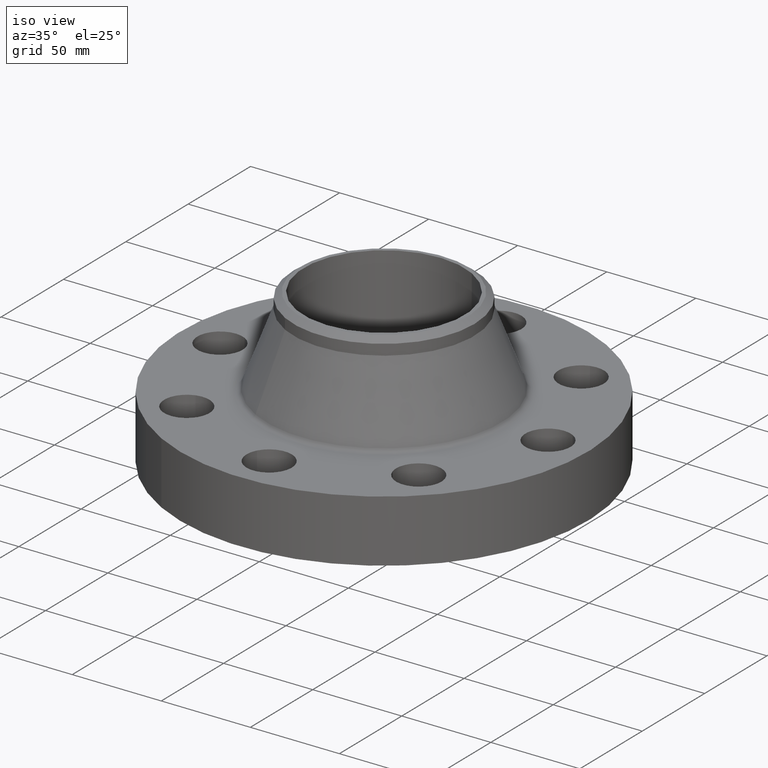
[diagram: clean part render]
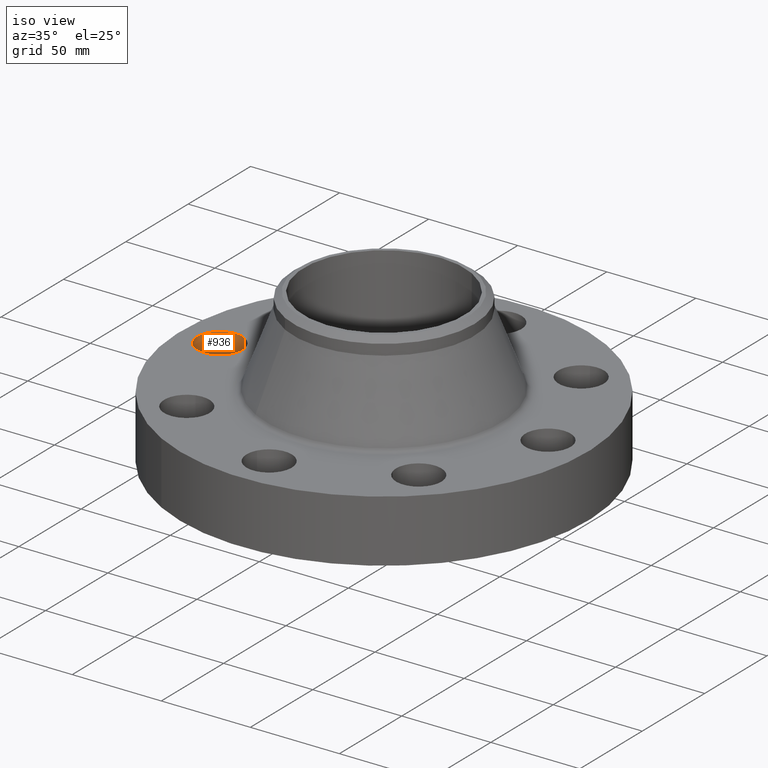
[diagram: same view with one face highlighted and labeled with its STEP entity id]
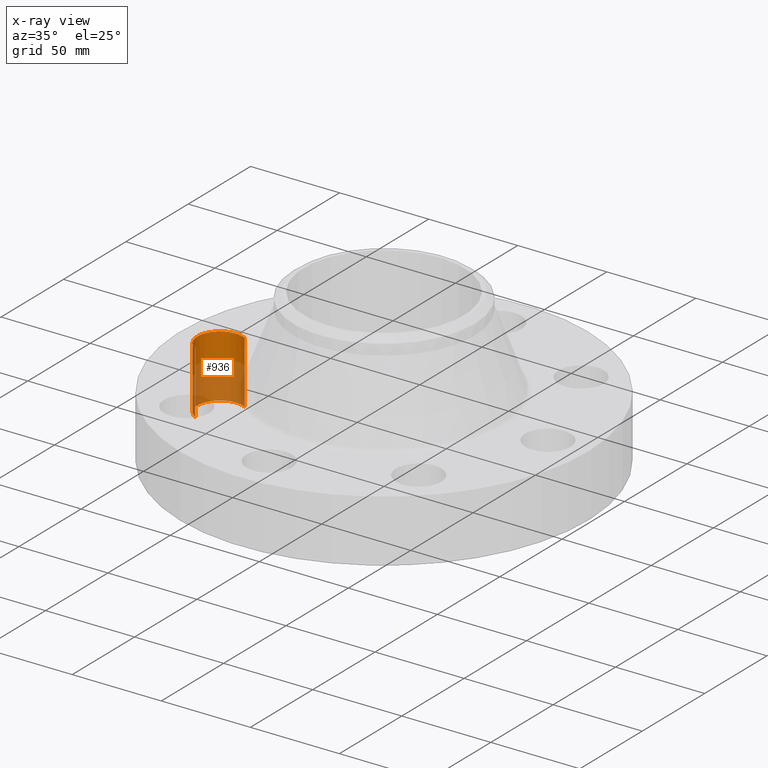
[diagram: x-ray of the same camera — body ghosted, the highlighted face saturated]
A machine part, iso view. The second image highlights one B-rep face of the part: STEP entity #936.
The next image is the same camera in x-ray: the body ghosted, the highlighted face saturated — about 59% of this face is hidden behind the body in this view.
In plain terms, the highlighted cylindrical surface (edge-blend (fillet) strip) has radius 12.7 mm, axis along (0, 0, -1).
Its self-contained STEP definition (entity closure, byte-faithful):
#626=AXIS2_PLACEMENT_3D('Circle Axis2P3D',#624,#625,$) ;
#909=AXIS2_PLACEMENT_3D('Cylinder Axis2P3D',#906,#907,#908) ;
#927=AXIS2_PLACEMENT_3D('Circle Axis2P3D',#925,#926,$) ;
#621=CARTESIAN_POINT('Vertex',(-3.38528723071,0.438791280947,0.)) ;
#624=CARTESIAN_POINT('Axis2P3D Location',(-3.62500000001,-1.1189649382E-015,0.)) ;
#628=CARTESIAN_POINT('Vertex',(-3.86471276932,-0.438791280947,0.)) ;
#906=CARTESIAN_POINT('Axis2P3D Location',(-3.62500000001,-1.22538416614E-015,1.37606299213)) ;
#911=CARTESIAN_POINT('Line Origine',(-3.86471276932,-0.438791280947,0.690000000003)) ;
#915=CARTESIAN_POINT('Vertex',(-3.86471276932,-0.438791280947,1.38000000001)) ;
#918=CARTESIAN_POINT('Line Origine',(-3.38528723071,0.438791280947,0.690000000003)) ;
#922=CARTESIAN_POINT('Vertex',(-3.38528723071,0.438791280947,1.38000000001)) ;
#925=CARTESIAN_POINT('Axis2P3D Location',(-3.62500000001,-1.22538416614E-015,1.38000000001)) ;
#625=DIRECTION('Axis2P3D Direction',(0.,0.,-0.0393700787402)) ;
#907=DIRECTION('Axis2P3D Direction',(0.,0.,-0.0393700787402)) ;
#908=DIRECTION('Axis2P3D XDirection',(0.0188750212049,0.0345504945626,0.)) ;
#912=DIRECTION('Vector Direction',(0.,0.,-0.0393700787402)) ;
#919=DIRECTION('Vector Direction',(0.,0.,-0.0393700787402)) ;
#926=DIRECTION('Axis2P3D Direction',(0.,0.,-0.0393700787402)) ;
#913=VECTOR('Line Direction',#912,0.0393700787402) ;
#920=VECTOR('Line Direction',#919,0.0393700787402) ;
#931=ORIENTED_EDGE('',*,*,#917,.F.) ;
#932=ORIENTED_EDGE('',*,*,#630,.T.) ;
#933=ORIENTED_EDGE('',*,*,#924,.T.) ;
#934=ORIENTED_EDGE('',*,*,#929,.F.) ;
#936=ADVANCED_FACE('PartBody',(#935),#910,.F.) ;
#627=CIRCLE('generated circle',#626,0.500000000002) ;
#928=CIRCLE('generated circle',#927,0.500000000002) ;
#910=CYLINDRICAL_SURFACE('generated cylinder',#909,0.500000000002) ;
#630=EDGE_CURVE('',#629,#622,#627,.T.) ;
#917=EDGE_CURVE('',#629,#916,#914,.F.) ;
#924=EDGE_CURVE('',#622,#923,#921,.F.) ;
#929=EDGE_CURVE('',#916,#923,#928,.T.) ;
#930=EDGE_LOOP('',(#931,#932,#933,#934)) ;
#935=FACE_OUTER_BOUND('',#930,.T.) ;
#914=LINE('Line',#911,#913) ;
#921=LINE('Line',#918,#920) ;
#622=VERTEX_POINT('',#621) ;
#629=VERTEX_POINT('',#628) ;
#916=VERTEX_POINT('',#915) ;
#923=VERTEX_POINT('',#922) ;